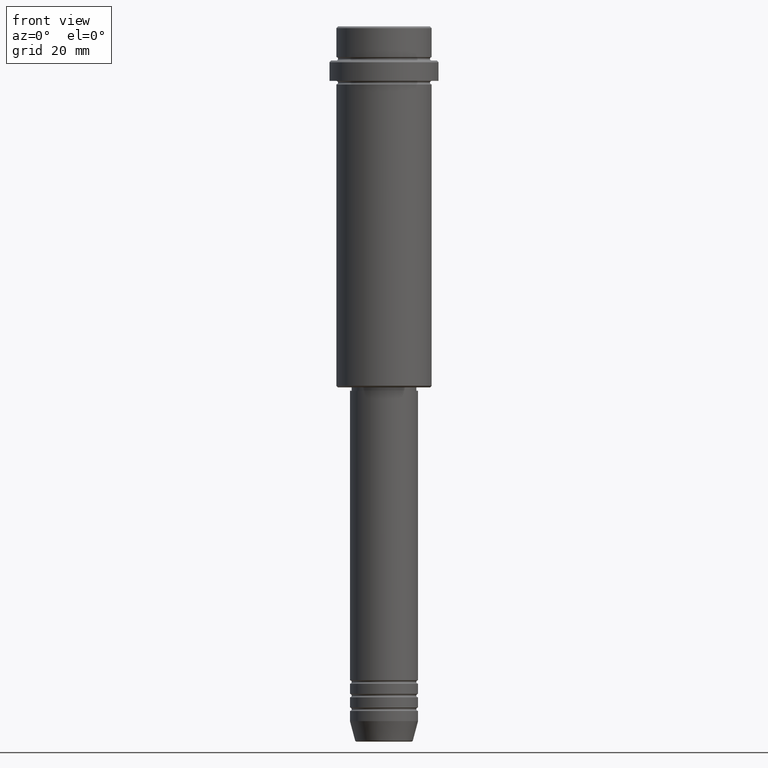
[diagram: clean part render]
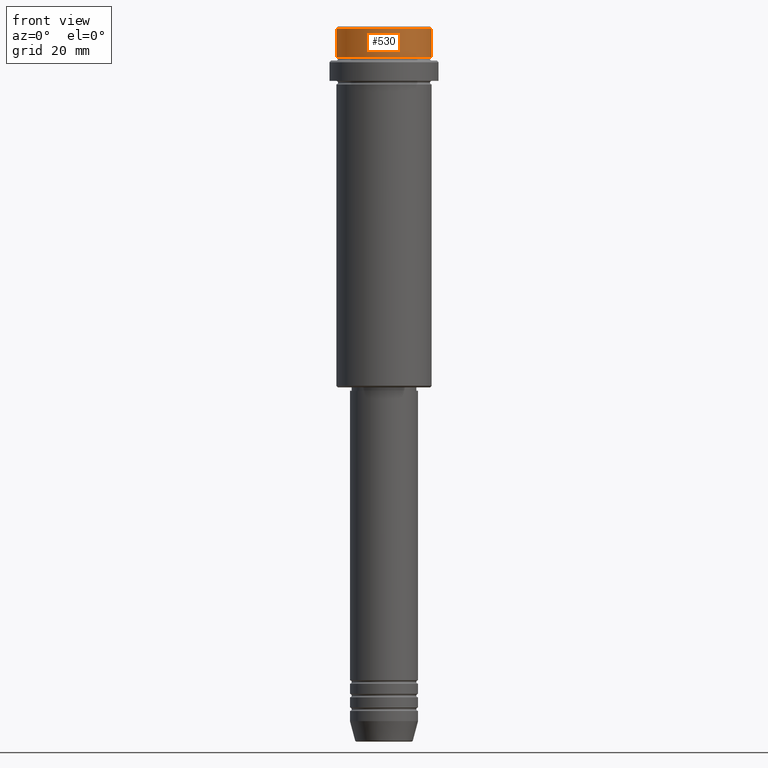
[diagram: same view with one face highlighted and labeled with its STEP entity id]
A machine part, front view. The second image highlights one B-rep face of the part: STEP entity #530.
In plain terms, the highlighted cylindrical surface (partial cylindrical patch) has radius 14 mm, axis along (-0, -0, 1).
Its self-contained STEP definition (entity closure, byte-faithful):
#31 = ORIENTED_EDGE ( 'NONE', *, *, #1352, .F. ) ;
#92 = CARTESIAN_POINT ( 'NONE',  ( -13.99999999999997158, 1.714505518806291877E-15, -8.999999999999998224 ) ) ;
#96 = DIRECTION ( 'NONE',  ( -0.000000000000000000, -0.000000000000000000, 1.000000000000000000 ) ) ;
#103 = LINE ( 'NONE', #968, #962 ) ;
#176 = DIRECTION ( 'NONE',  ( 1.000000000000000000, 0.000000000000000000, 0.000000000000000000 ) ) ;
#180 = ORIENTED_EDGE ( 'NONE', *, *, #183, .T. ) ;
#183 = EDGE_CURVE ( 'NONE', #1206, #418, #349, .T. ) ;
#197 = AXIS2_PLACEMENT_3D ( 'NONE', #265, #1002, #1128 ) ;
#218 = CIRCLE ( 'NONE', #197, 13.99999999999998401 ) ;
#243 = EDGE_CURVE ( 'NONE', #418, #672, #103, .T. ) ;
#265 = CARTESIAN_POINT ( 'NONE',  ( 0.000000000000000000, 0.000000000000000000, -0.4999999999999917843 ) ) ;
#349 = CIRCLE ( 'NONE', #1303, 13.99999999999997158 ) ;
#418 = VERTEX_POINT ( 'NONE', #1238 ) ;
#496 = VECTOR ( 'NONE', #811, 1000.000000000000000 ) ;
#513 = EDGE_LOOP ( 'NONE', ( #31, #180, #1262, #975 ) ) ;
#528 = VERTEX_POINT ( 'NONE', #616 ) ;
#530 = ADVANCED_FACE ( 'NONE', ( #1363 ), #937, .T. ) ;
#616 = CARTESIAN_POINT ( 'NONE',  ( -13.99999999999998401, 1.714505518806292666E-15, -0.4999999999999917843 ) ) ;
#672 = VERTEX_POINT ( 'NONE', #1077 ) ;
#711 = DIRECTION ( 'NONE',  ( -0.000000000000000000, -0.000000000000000000, 1.000000000000000000 ) ) ;
#811 = DIRECTION ( 'NONE',  ( -0.000000000000000000, -0.000000000000000000, 1.000000000000000000 ) ) ;
#841 = CARTESIAN_POINT ( 'NONE',  ( 0.000000000000000000, 0.000000000000000000, -8.999999999999998224 ) ) ;
#915 = EDGE_CURVE ( 'NONE', #672, #528, #218, .T. ) ;
#937 = CYLINDRICAL_SURFACE ( 'NONE', #1235, 13.99999999999998401 ) ;
#962 = VECTOR ( 'NONE', #1413, 1000.000000000000000 ) ;
#968 = CARTESIAN_POINT ( 'NONE',  ( 13.99999999999998401, 0.000000000000000000, 0.000000000000000000 ) ) ;
#975 = ORIENTED_EDGE ( 'NONE', *, *, #915, .T. ) ;
#1002 = DIRECTION ( 'NONE',  ( 0.000000000000000000, 0.000000000000000000, -1.000000000000000000 ) ) ;
#1077 = CARTESIAN_POINT ( 'NONE',  ( 13.99999999999998401, 0.000000000000000000, -0.4999999999999917843 ) ) ;
#1128 = DIRECTION ( 'NONE',  ( 1.000000000000000000, 0.000000000000000000, 0.000000000000000000 ) ) ;
#1173 = DIRECTION ( 'NONE',  ( 1.000000000000000000, 0.000000000000000000, 0.000000000000000000 ) ) ;
#1206 = VERTEX_POINT ( 'NONE', #92 ) ;
#1235 = AXIS2_PLACEMENT_3D ( 'NONE', #1251, #711, #176 ) ;
#1238 = CARTESIAN_POINT ( 'NONE',  ( 13.99999999999997158, 0.000000000000000000, -8.999999999999998224 ) ) ;
#1251 = CARTESIAN_POINT ( 'NONE',  ( 0.000000000000000000, 0.000000000000000000, 0.000000000000000000 ) ) ;
#1252 = CARTESIAN_POINT ( 'NONE',  ( -13.99999999999998401, 1.714505518806292666E-15, 0.000000000000000000 ) ) ;
#1262 = ORIENTED_EDGE ( 'NONE', *, *, #243, .T. ) ;
#1303 = AXIS2_PLACEMENT_3D ( 'NONE', #841, #96, #1173 ) ;
#1352 = EDGE_CURVE ( 'NONE', #1206, #528, #1372, .T. ) ;
#1363 = FACE_OUTER_BOUND ( 'NONE', #513, .T. ) ;
#1372 = LINE ( 'NONE', #1252, #496 ) ;
#1413 = DIRECTION ( 'NONE',  ( -0.000000000000000000, -0.000000000000000000, 1.000000000000000000 ) ) ;